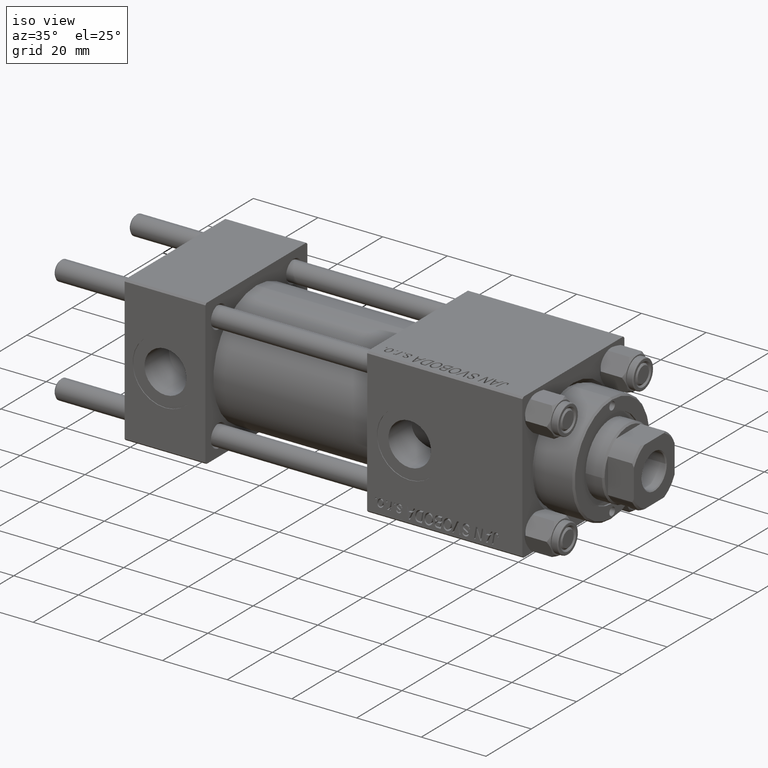
[diagram: clean part render]
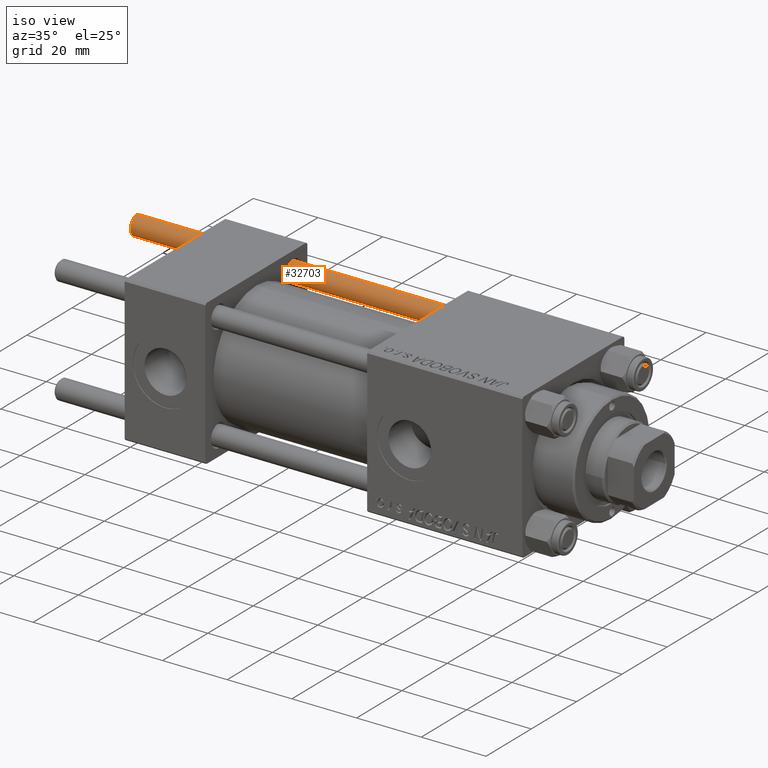
[diagram: same view with one face highlighted and labeled with its STEP entity id]
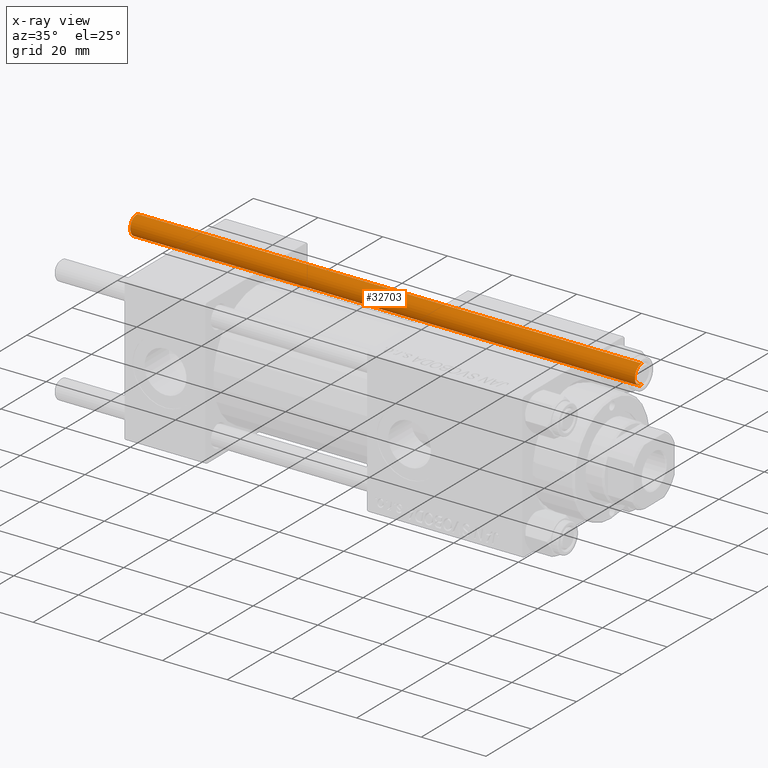
[diagram: x-ray of the same camera — body ghosted, the highlighted face saturated]
A machine part, iso view. The second image highlights one B-rep face of the part: STEP entity #32703.
The next image is the same camera in x-ray: the body ghosted, the highlighted face saturated — about 1% of this face is hidden behind the body in this view.
In plain terms, the highlighted cylindrical surface (edge-blend (fillet) strip) has radius 3 mm, axis along (-1, -0, -0).
Its self-contained STEP definition (entity closure, byte-faithful):
#1534 = AXIS2_PLACEMENT_3D ( 'NONE', #7920, #42885, #35768 ) ;
#5730 = LINE ( 'NONE', #22544, #25274 ) ;
#6187 = CARTESIAN_POINT ( 'NONE',  ( 0.000000000000000000, 0.000000000000000000, 0.4999999999999726885 ) ) ;
#7920 = CARTESIAN_POINT ( 'NONE',  ( 0.000000000000000000, 0.000000000000000000, 156.5000000000000284 ) ) ;
#8801 = VECTOR ( 'NONE', #19486, 1000.000000000000000 ) ;
#11424 = VERTEX_POINT ( 'NONE', #29609 ) ;
#11544 = ORIENTED_EDGE ( 'NONE', *, *, #34711, .T. ) ;
#11666 = CYLINDRICAL_SURFACE ( 'NONE', #23399, 3.000000000000000444 ) ;
#13811 = DIRECTION ( 'NONE',  ( 1.000000000000000000, 0.000000000000000000, 0.000000000000000000 ) ) ;
#15207 = VERTEX_POINT ( 'NONE', #25827 ) ;
#17537 = VERTEX_POINT ( 'NONE', #38138 ) ;
#18452 = CARTESIAN_POINT ( 'NONE',  ( 3.000000000000000444, 3.673940397442060361E-16, 157.0000000000000000 ) ) ;
#18763 = CARTESIAN_POINT ( 'NONE',  ( 0.000000000000000000, 0.000000000000000000, 157.0000000000000000 ) ) ;
#19486 = DIRECTION ( 'NONE',  ( -0.000000000000000000, -0.000000000000000000, -1.000000000000000000 ) ) ;
#22544 = CARTESIAN_POINT ( 'NONE',  ( -3.000000000000000444, 0.000000000000000000, 157.0000000000000000 ) ) ;
#23399 = AXIS2_PLACEMENT_3D ( 'NONE', #18763, #27693, #42947 ) ;
#23434 = LINE ( 'NONE', #18452, #8801 ) ;
#24202 = CIRCLE ( 'NONE', #1534, 3.000000000000000444 ) ;
#25274 = VECTOR ( 'NONE', #50681, 1000.000000000000000 ) ;
#25827 = CARTESIAN_POINT ( 'NONE',  ( -3.000000000000000444, 0.000000000000000000, 156.5000000000000284 ) ) ;
#26007 = ORIENTED_EDGE ( 'NONE', *, *, #50162, .F. ) ;
#26983 = EDGE_CURVE ( 'NONE', #11424, #15207, #24202, .T. ) ;
#27693 = DIRECTION ( 'NONE',  ( -0.000000000000000000, -0.000000000000000000, -1.000000000000000000 ) ) ;
#28245 = CARTESIAN_POINT ( 'NONE',  ( -3.000000000000000444, 0.000000000000000000, 0.4999999999999726885 ) ) ;
#29609 = CARTESIAN_POINT ( 'NONE',  ( 3.000000000000000444, 3.673940397442060361E-16, 156.5000000000000284 ) ) ;
#31201 = ORIENTED_EDGE ( 'NONE', *, *, #26983, .T. ) ;
#32703 = ADVANCED_FACE ( 'NONE', ( #47692 ), #11666, .T. ) ;
#33785 = DIRECTION ( 'NONE',  ( -0.000000000000000000, -0.000000000000000000, 1.000000000000000000 ) ) ;
#34711 = EDGE_CURVE ( 'NONE', #38947, #17537, #49539, .T. ) ;
#35768 = DIRECTION ( 'NONE',  ( 1.000000000000000000, 0.000000000000000000, 0.000000000000000000 ) ) ;
#36084 = AXIS2_PLACEMENT_3D ( 'NONE', #6187, #33785, #13811 ) ;
#38138 = CARTESIAN_POINT ( 'NONE',  ( 3.000000000000000444, 3.673940397442060361E-16, 0.4999999999999726885 ) ) ;
#38455 = EDGE_CURVE ( 'NONE', #15207, #38947, #5730, .T. ) ;
#38553 = EDGE_LOOP ( 'NONE', ( #26007, #31201, #42210, #11544 ) ) ;
#38947 = VERTEX_POINT ( 'NONE', #28245 ) ;
#42210 = ORIENTED_EDGE ( 'NONE', *, *, #38455, .T. ) ;
#42885 = DIRECTION ( 'NONE',  ( 0.000000000000000000, 0.000000000000000000, -1.000000000000000000 ) ) ;
#42947 = DIRECTION ( 'NONE',  ( -1.000000000000000000, 0.000000000000000000, 0.000000000000000000 ) ) ;
#47692 = FACE_OUTER_BOUND ( 'NONE', #38553, .T. ) ;
#49539 = CIRCLE ( 'NONE', #36084, 3.000000000000000444 ) ;
#50162 = EDGE_CURVE ( 'NONE', #11424, #17537, #23434, .T. ) ;
#50681 = DIRECTION ( 'NONE',  ( -0.000000000000000000, -0.000000000000000000, -1.000000000000000000 ) ) ;